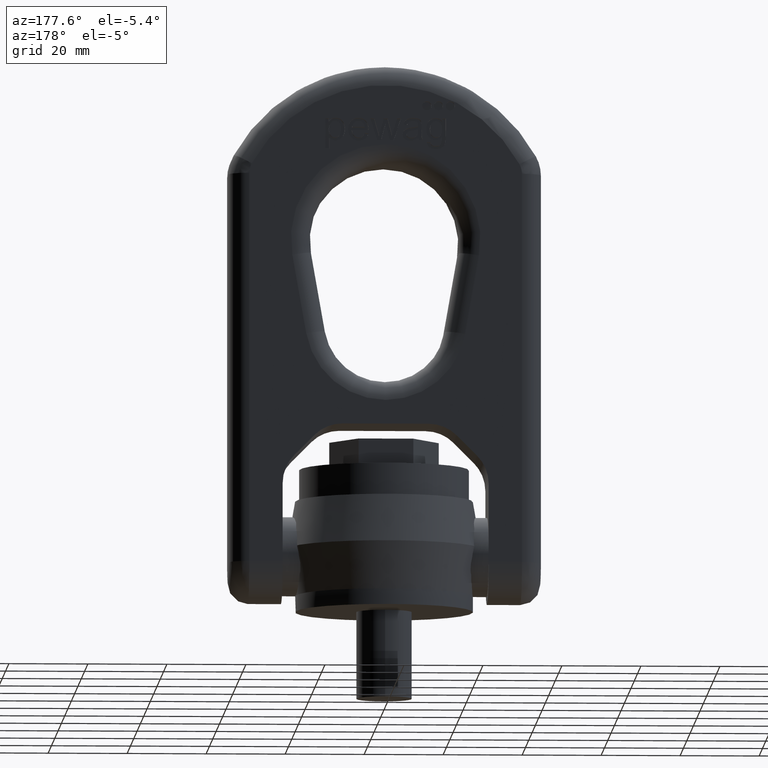
[diagram: clean part render]
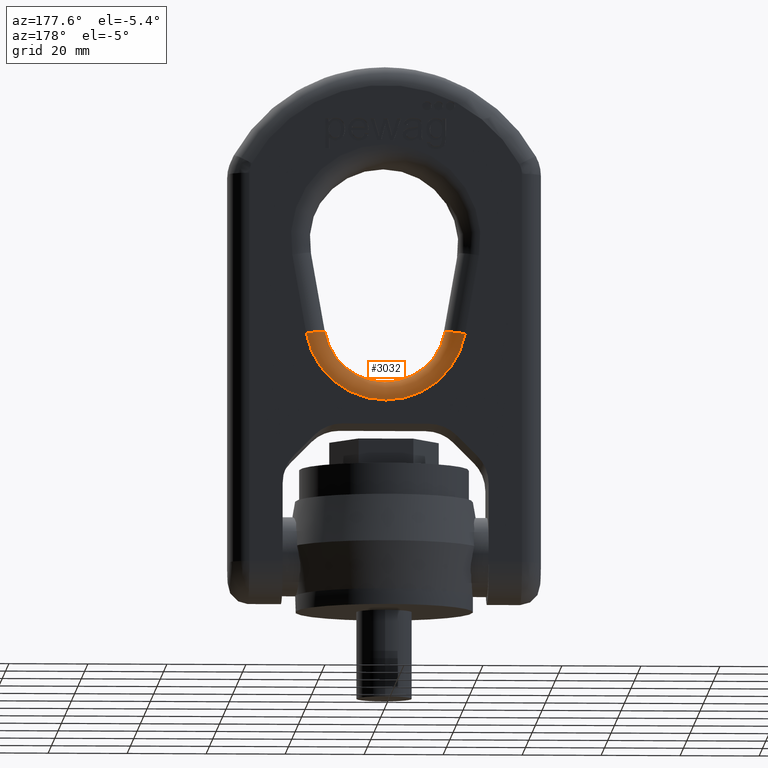
[diagram: same view with one face highlighted and labeled with its STEP entity id]
A machine part, auxiliary view. The second image highlights one B-rep face of the part: STEP entity #3032.
In plain terms, the highlighted toroidal blend (fillet) surface has major radius 20.4276 mm and minor (blend) radius 5 mm.
Its self-contained STEP definition (entity closure, byte-faithful):
#203=TOROIDAL_SURFACE('',#6050,20.4276486835797,5.);
#2657=FACE_OUTER_BOUND('',#3425,.T.);
#3032=ADVANCED_FACE('',(#2657),#203,.T.);
#3425=EDGE_LOOP('',(#4665,#4666,#4667,#4668));
#4665=ORIENTED_EDGE('',*,*,#5741,.F.);
#4666=ORIENTED_EDGE('',*,*,#5372,.F.);
#4667=ORIENTED_EDGE('',*,*,#5742,.F.);
#4668=ORIENTED_EDGE('',*,*,#5266,.F.);
#4827=VERTEX_POINT('',#7396);
#4830=VERTEX_POINT('',#7401);
#4912=VERTEX_POINT('',#7723);
#4917=VERTEX_POINT('',#7737);
#5266=EDGE_CURVE('',#4830,#4827,#5776,.T.);
#5372=EDGE_CURVE('',#4917,#4912,#5793,.T.);
#5741=EDGE_CURVE('',#4912,#4830,#5819,.T.);
#5742=EDGE_CURVE('',#4827,#4917,#5820,.T.);
#5776=CIRCLE('',#5883,20.4276486835797);
#5793=CIRCLE('',#5907,15.4276486835797);
#5819=CIRCLE('',#6048,5.);
#5820=CIRCLE('',#6049,5.);
#5883=AXIS2_PLACEMENT_3D('',#7402,#6264,#6265);
#5907=AXIS2_PLACEMENT_3D('',#7769,#6367,#6368);
#6048=AXIS2_PLACEMENT_3D('',#9829,#6904,#6905);
#6049=AXIS2_PLACEMENT_3D('',#9830,#6906,#6907);
#6050=AXIS2_PLACEMENT_3D('',#9831,#6908,#6909);
#6264=DIRECTION('',(-2.34291072916505E-15,-1.,0.));
#6265=DIRECTION('',(-1.,2.37777034840012E-15,0.));
#6367=DIRECTION('',(2.34291072916505E-15,1.,0.));
#6368=DIRECTION('',(-1.,2.3612926209738E-15,0.));
#6904=DIRECTION('',(-0.17364817766693,2.40985256287531E-16,0.984807753012208));
#6905=DIRECTION('',(0.984807753012208,0.,0.17364817766693));
#6906=DIRECTION('',(0.17364817766693,-3.61477884431297E-16,0.984807753012208));
#6907=DIRECTION('',(0.984807753012208,0.,-0.17364817766693));
#6908=DIRECTION('',(2.34291072916505E-15,1.,0.));
#6909=DIRECTION('',(-1.,2.35365686642696E-15,0.));
#7396=CARTESIAN_POINT('',(20.117306799399,9.99999999999995,69.8804247156558));
#7401=CARTESIAN_POINT('',(-20.117306799399,10.,69.8804247156558));
#7402=CARTESIAN_POINT('',(1.17145536458252E-14,10.,73.4276486835797));
#7723=CARTESIAN_POINT('',(-15.1932680343379,5.00000000000005,70.7486656039905));
#7737=CARTESIAN_POINT('',(15.1932680343379,4.99999999999998,70.7486656039905));
#7769=CARTESIAN_POINT('',(0.,5.00000000000001,73.4276486835797));
#9829=CARTESIAN_POINT('',(-20.117306799399,5.00000000000005,69.8804247156558));
#9830=CARTESIAN_POINT('',(20.117306799399,4.99999999999995,69.8804247156558));
#9831=CARTESIAN_POINT('',(0.,5.,73.4276486835797));